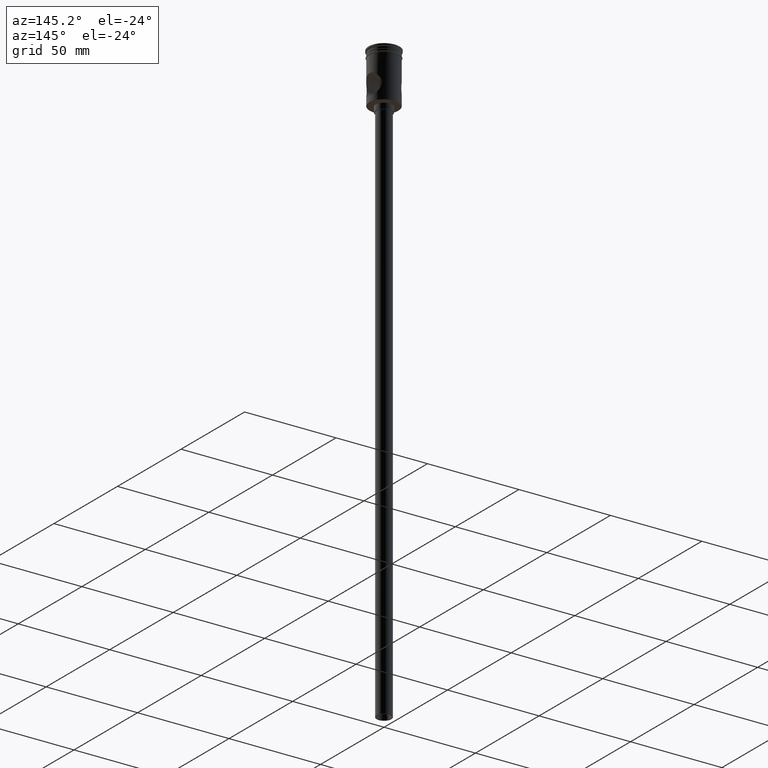
[diagram: clean part render]
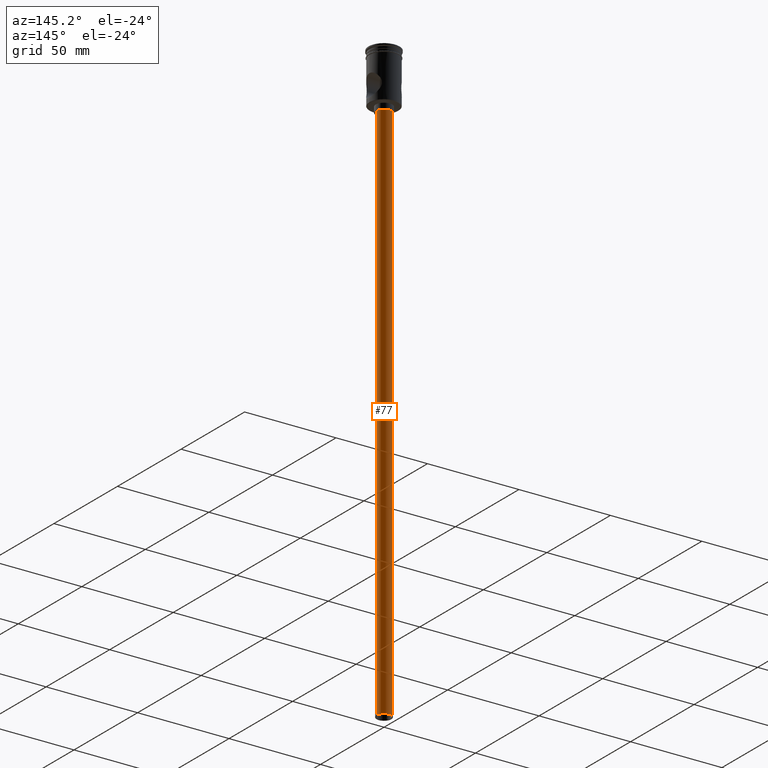
[diagram: same view with one face highlighted and labeled with its STEP entity id]
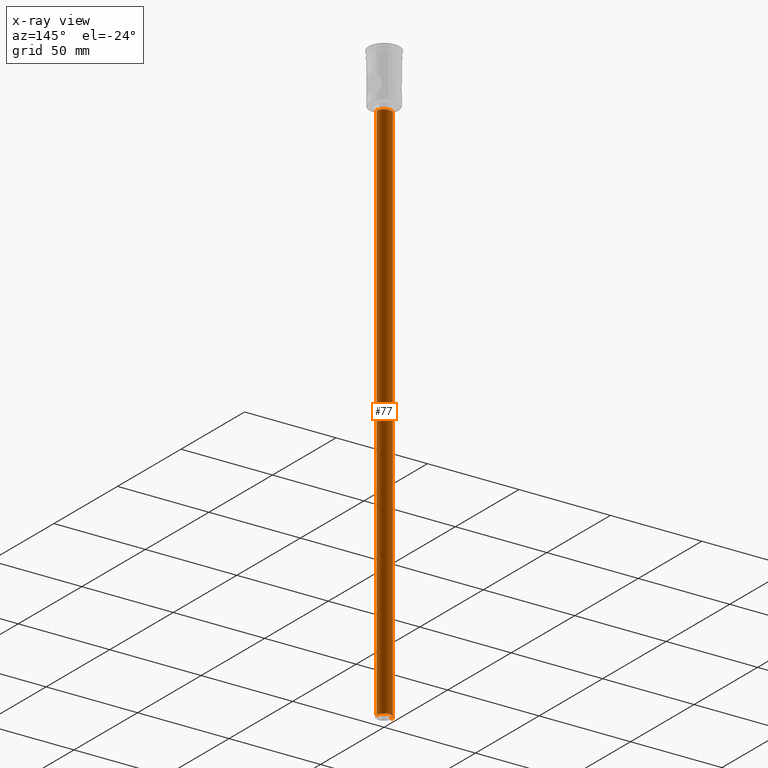
[diagram: x-ray of the same camera — body ghosted, the highlighted face saturated]
A machine part, auxiliary view. The second image highlights one B-rep face of the part: STEP entity #77.
The next image is the same camera in x-ray: the body ghosted, the highlighted face saturated — about 0% of this face is hidden behind the body in this view.
In plain terms, the highlighted cylindrical surface (edge-blend (fillet) strip) has radius 4 mm, axis along (-0, -0, 1).
Its self-contained STEP definition (entity closure, byte-faithful):
#18 = DIRECTION ( 'NONE',  ( 1.000000000000000000, 0.000000000000000000, 0.000000000000000000 ) ) ;
#77 = ADVANCED_FACE ( 'NONE', ( #485 ), #364, .T. ) ;
#82 = CARTESIAN_POINT ( 'NONE',  ( 0.000000000000000000, 0.000000000000000000, -327.5000000000000000 ) ) ;
#137 = ORIENTED_EDGE ( 'NONE', *, *, #988, .T. ) ;
#206 = DIRECTION ( 'NONE',  ( 0.000000000000000000, 0.000000000000000000, -1.000000000000000000 ) ) ;
#247 = ORIENTED_EDGE ( 'NONE', *, *, #304, .F. ) ;
#254 = VECTOR ( 'NONE', #562, 1000.000000000000000 ) ;
#284 = CARTESIAN_POINT ( 'NONE',  ( -4.000000000000000000, 4.898587196589412829E-16, -327.5000000000000000 ) ) ;
#304 = EDGE_CURVE ( 'NONE', #557, #1220, #585, .T. ) ;
#317 = CARTESIAN_POINT ( 'NONE',  ( 4.000000000000000000, 0.000000000000000000, -327.5000000000000000 ) ) ;
#339 = LINE ( 'NONE', #798, #254 ) ;
#352 = CARTESIAN_POINT ( 'NONE',  ( 0.000000000000000000, 0.000000000000000000, -30.50000000000000000 ) ) ;
#364 = CYLINDRICAL_SURFACE ( 'NONE', #951, 4.000000000000000000 ) ;
#410 = CARTESIAN_POINT ( 'NONE',  ( 4.000000000000000000, 0.000000000000000000, -30.50000000000000000 ) ) ;
#423 = VECTOR ( 'NONE', #1073, 1000.000000000000000 ) ;
#485 = FACE_OUTER_BOUND ( 'NONE', #953, .T. ) ;
#511 = DIRECTION ( 'NONE',  ( 0.000000000000000000, 0.000000000000000000, -1.000000000000000000 ) ) ;
#512 = ORIENTED_EDGE ( 'NONE', *, *, #994, .T. ) ;
#557 = VERTEX_POINT ( 'NONE', #317 ) ;
#562 = DIRECTION ( 'NONE',  ( -0.000000000000000000, -0.000000000000000000, 1.000000000000000000 ) ) ;
#578 = CARTESIAN_POINT ( 'NONE',  ( 4.000000000000000000, 0.000000000000000000, -327.5000000000000000 ) ) ;
#585 = LINE ( 'NONE', #578, #423 ) ;
#661 = VERTEX_POINT ( 'NONE', #284 ) ;
#713 = CIRCLE ( 'NONE', #923, 4.000000000000000000 ) ;
#759 = EDGE_CURVE ( 'NONE', #661, #557, #1032, .T. ) ;
#798 = CARTESIAN_POINT ( 'NONE',  ( -4.000000000000000000, 4.898587196589412829E-16, -327.5000000000000000 ) ) ;
#838 = ORIENTED_EDGE ( 'NONE', *, *, #759, .F. ) ;
#851 = CARTESIAN_POINT ( 'NONE',  ( -4.000000000000000000, 4.898587196589412829E-16, -30.50000000000000000 ) ) ;
#923 = AXIS2_PLACEMENT_3D ( 'NONE', #352, #206, #1185 ) ;
#951 = AXIS2_PLACEMENT_3D ( 'NONE', #1170, #1082, #18 ) ;
#953 = EDGE_LOOP ( 'NONE', ( #838, #512, #137, #247 ) ) ;
#988 = EDGE_CURVE ( 'NONE', #1135, #1220, #713, .T. ) ;
#994 = EDGE_CURVE ( 'NONE', #661, #1135, #339, .T. ) ;
#1029 = DIRECTION ( 'NONE',  ( -1.000000000000000000, 0.000000000000000000, 0.000000000000000000 ) ) ;
#1032 = CIRCLE ( 'NONE', #1345, 4.000000000000000000 ) ;
#1073 = DIRECTION ( 'NONE',  ( -0.000000000000000000, -0.000000000000000000, 1.000000000000000000 ) ) ;
#1082 = DIRECTION ( 'NONE',  ( -0.000000000000000000, -0.000000000000000000, 1.000000000000000000 ) ) ;
#1135 = VERTEX_POINT ( 'NONE', #851 ) ;
#1170 = CARTESIAN_POINT ( 'NONE',  ( 0.000000000000000000, 0.000000000000000000, -327.5000000000000000 ) ) ;
#1185 = DIRECTION ( 'NONE',  ( -1.000000000000000000, 0.000000000000000000, 0.000000000000000000 ) ) ;
#1220 = VERTEX_POINT ( 'NONE', #410 ) ;
#1345 = AXIS2_PLACEMENT_3D ( 'NONE', #82, #511, #1029 ) ;